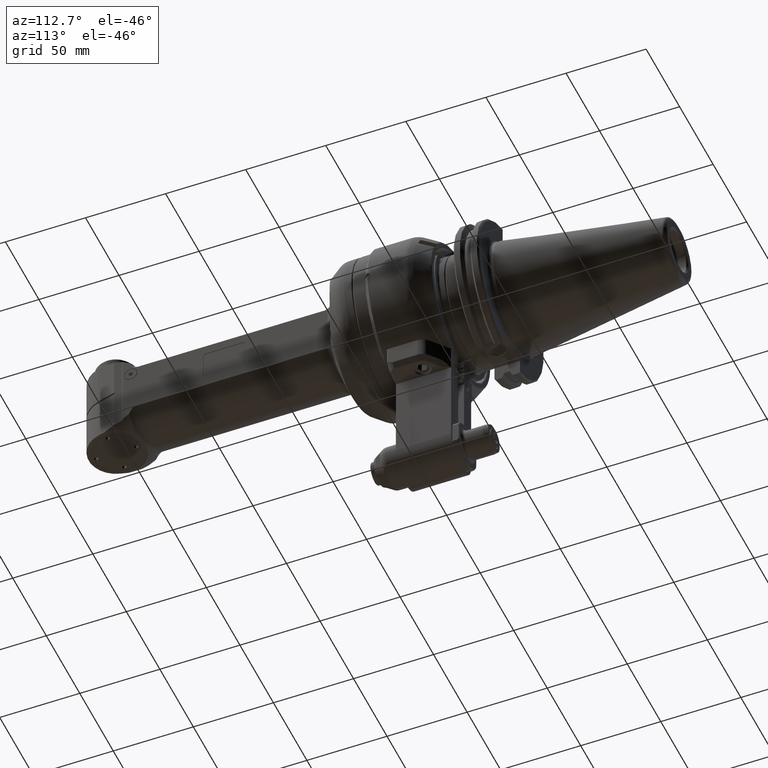
[diagram: clean part render]
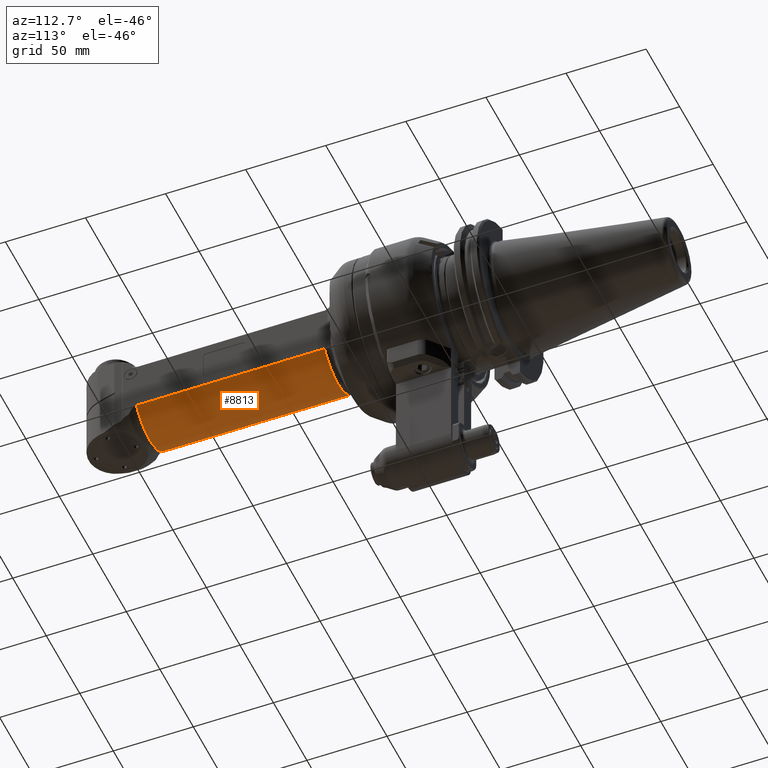
[diagram: same view with one face highlighted and labeled with its STEP entity id]
A machine part, auxiliary view. The second image highlights one B-rep face of the part: STEP entity #8813.
In plain terms, the highlighted cylindrical surface (partial cylindrical patch) has radius 25.5 mm, axis along (0, -1, -0).
Its self-contained STEP definition (entity closure, byte-faithful):
#730=FACE_OUTER_BOUND('',#1285,.T.);
#1285=EDGE_LOOP('',(#6005,#6006,#6007,#6008));
#1919=LINE('',#13490,#2515);
#1928=LINE('',#13628,#2524);
#2515=VECTOR('',#10576,117.4166943204);
#2524=VECTOR('',#10611,117.4166943204);
#3123=CIRCLE('',#9445,25.5);
#3124=CIRCLE('',#9447,25.5);
#3681=VERTEX_POINT('',#13474);
#3682=VERTEX_POINT('',#13489);
#3708=VERTEX_POINT('',#13618);
#3709=VERTEX_POINT('',#13627);
#4571=EDGE_CURVE('',#3682,#3681,#1919,.T.);
#4603=EDGE_CURVE('',#3709,#3708,#1928,.T.);
#4620=EDGE_CURVE('',#3709,#3681,#3123,.T.);
#4621=EDGE_CURVE('',#3682,#3708,#3124,.T.);
#6005=ORIENTED_EDGE('',*,*,#4621,.F.);
#6006=ORIENTED_EDGE('',*,*,#4571,.T.);
#6007=ORIENTED_EDGE('',*,*,#4620,.F.);
#6008=ORIENTED_EDGE('',*,*,#4603,.T.);
#8644=CYLINDRICAL_SURFACE('',#9446,25.5);
#8813=ADVANCED_FACE('',(#730),#8644,.T.);
#9445=AXIS2_PLACEMENT_3D('',#13679,#10638,#10639);
#9446=AXIS2_PLACEMENT_3D('',#13680,#10640,#10641);
#9447=AXIS2_PLACEMENT_3D('',#13681,#10642,#10643);
#10576=DIRECTION('',(1.,0.,0.));
#10611=DIRECTION('',(-1.,0.,0.));
#10638=DIRECTION('center_axis',(1.,0.,0.));
#10639=DIRECTION('ref_axis',(0.,0.62036439292379,-0.784313725490188));
#10640=DIRECTION('center_axis',(1.,0.,0.));
#10641=DIRECTION('ref_axis',(0.,0.83292124071012,-0.553391549243313));
#10642=DIRECTION('center_axis',(-1.,0.,0.));
#10643=DIRECTION('ref_axis',(0.,0.83292124071012,-0.553391549243313));
#13474=CARTESIAN_POINT('',(185.9177317978,15.81929201956,20.));
#13489=CARTESIAN_POINT('',(68.50103747742,15.81929201956,20.));
#13490=CARTESIAN_POINT('',(68.50103747742,15.81929201956,20.));
#13618=CARTESIAN_POINT('',(68.50103747742,15.81929201956,-20.));
#13627=CARTESIAN_POINT('',(185.9177317978,15.81929201956,-20.));
#13628=CARTESIAN_POINT('',(185.9177317978,15.81929201956,-20.));
#13679=CARTESIAN_POINT('Origin',(185.9177317978,0.,0.));
#13680=CARTESIAN_POINT('Origin',(127.2093846376,0.,0.));
#13681=CARTESIAN_POINT('Origin',(68.50103747742,0.,0.));